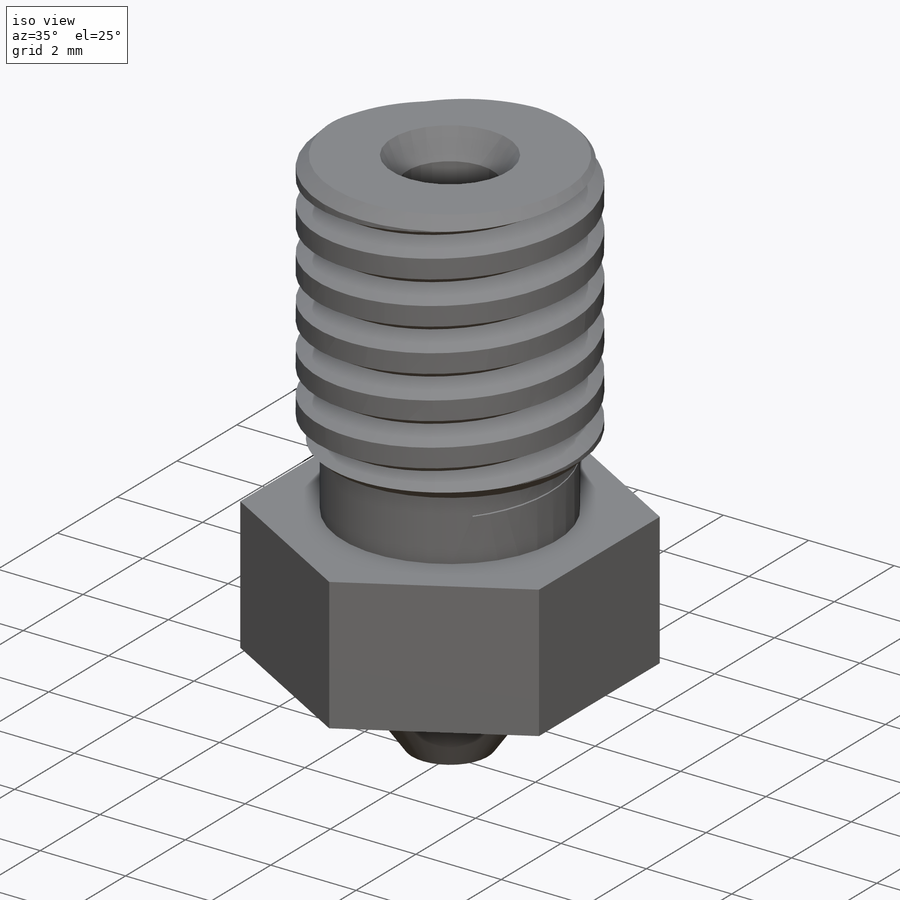
[diagram: iso view]
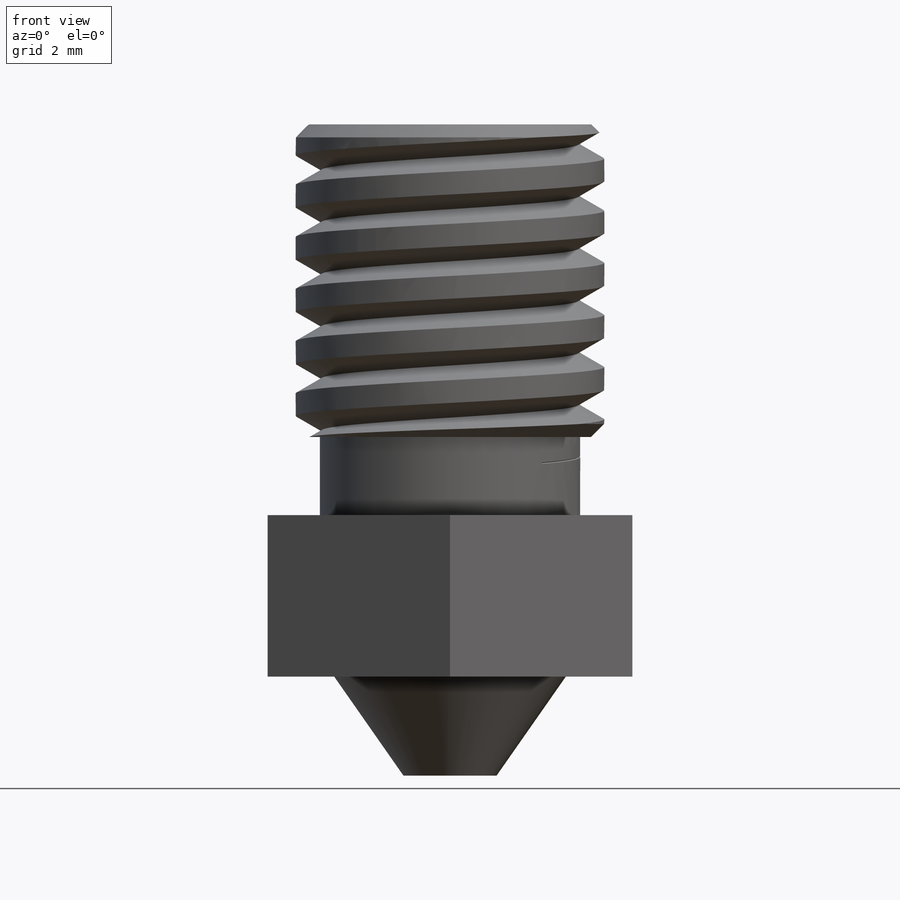
[diagram: front view]
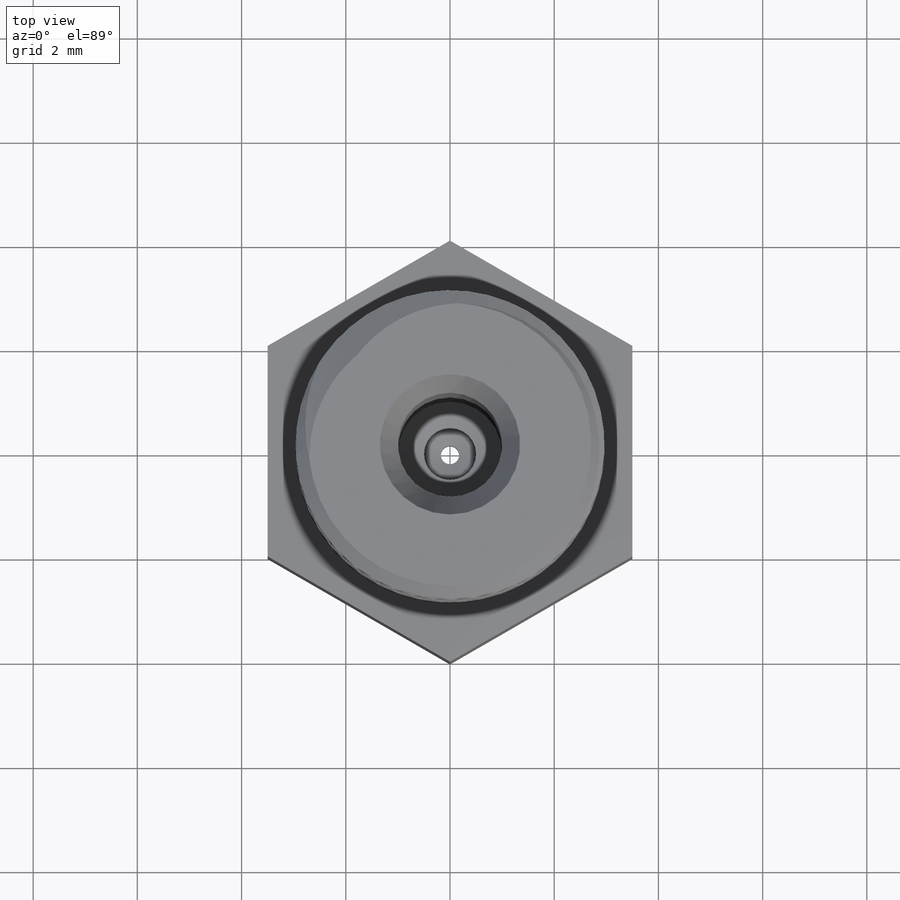
[diagram: top view]
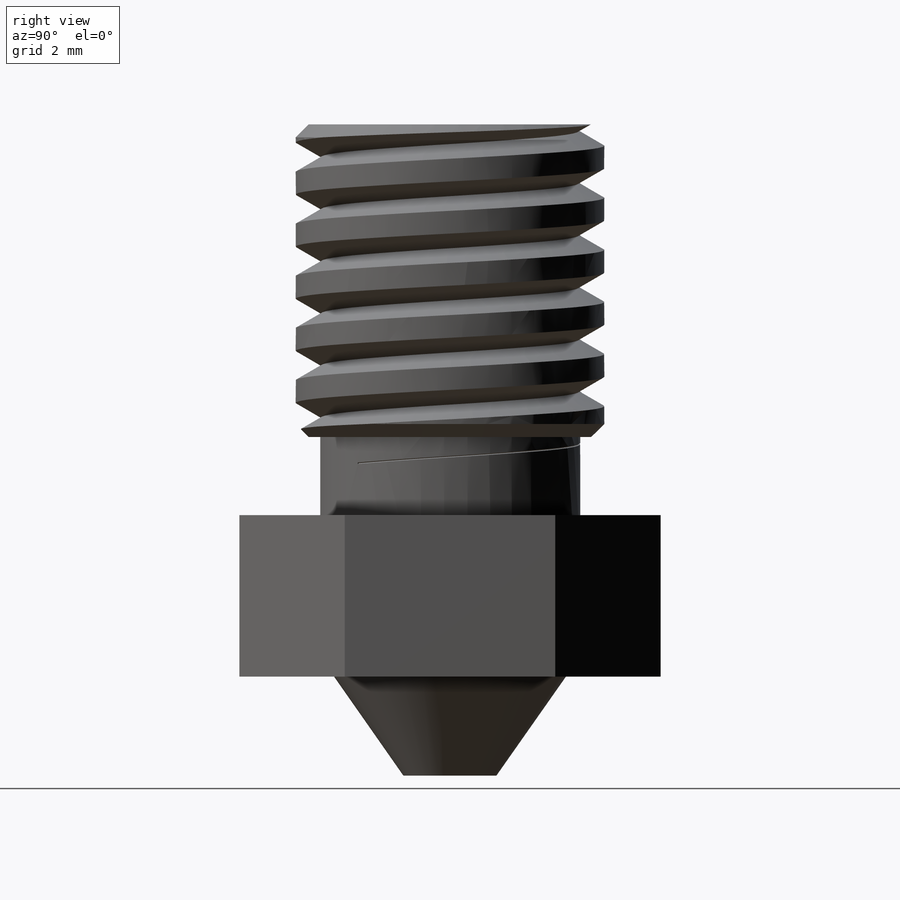
[diagram: right view]
SOLIDWORKS PART (.sldprt)
format: sldprt  version: not decoded by parser v0  size: 405,504 bytes
history: native  units: mm
features: sketch x4, material x1, extrude x1, cut_revolve x1, chamfer x1, plane x1, helix x1, sweep x1 (+13 scaffold rows collapsed)
feature tree (24):
  scaffold x13  (default folders/planes/origin — collapsed)
  material  "Material <not specified>"
  sketch  "Sketch1"  dims[D1=7.0mm]
  extrude  "Boss-Extrude1"  Depth=12.5mm
  sketch  "Sketch3"  dims[c1.D1=0.175mm c1.D2=0.7mm c1.D3=0.5mm c1.D4=10.6mm c1.D5=7.5mm c1.D6=2.5mm c1.D7=6.0mm c1.D8=~1.33127mm c2.D8=125.0deg c2.D9=0.02mm c2.D10=0.88mm c2.D11=~0.60359mm c3.D11=18.0deg c3.D12=~0.899048mm c4.D12=18.0deg c5.D12=~0.789936mm c6.D12=60.0deg c6.D13=1.0mm c6.D14=4.5mm]
  cut_revolve  "Cut-Revolve1"  Angle=360deg
  chamfer  "Chamfer1"  Distance=0.25mm Angle=45deg
  plane  "Plane1"  Offset=1mm
  sketch  "Sketch4"  dims[D1=4.95mm]
  helix  "Helix/Spiral1"  Pitch=7.5mm
  sketch  "Sketch5"  dims[c1.D1=~0.899269mm c2.D1=30.0deg c2.D2=0.505mm]
  sweep  "Cut-Sweep1"
decode coverage: 8 of 9 modeling features carry decoded parameters
note: ~ marks probable driven/reference dimensions
note: suppression state not decoded; provenance and decode notes live in map.json
